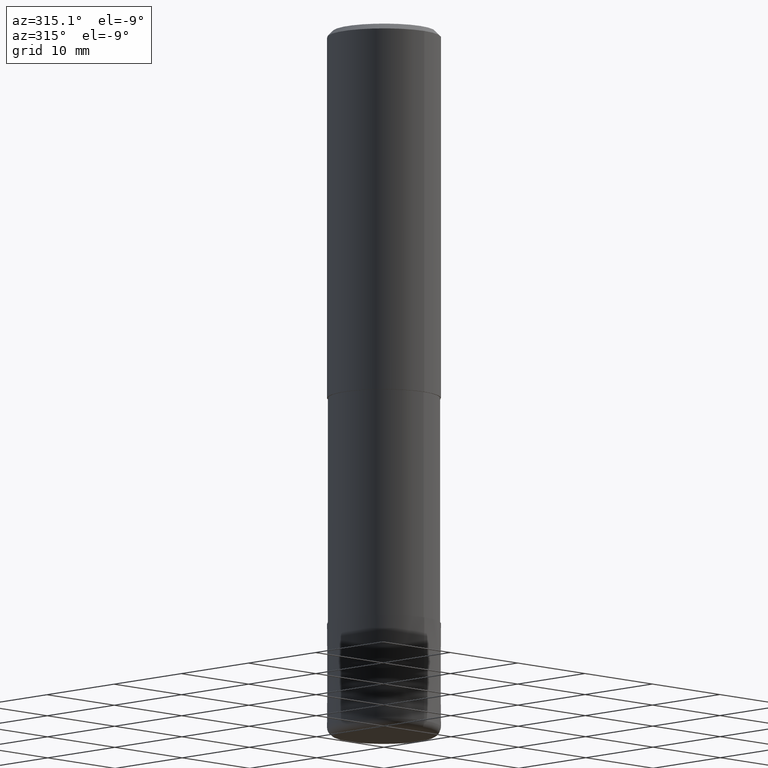
[diagram: clean part render]
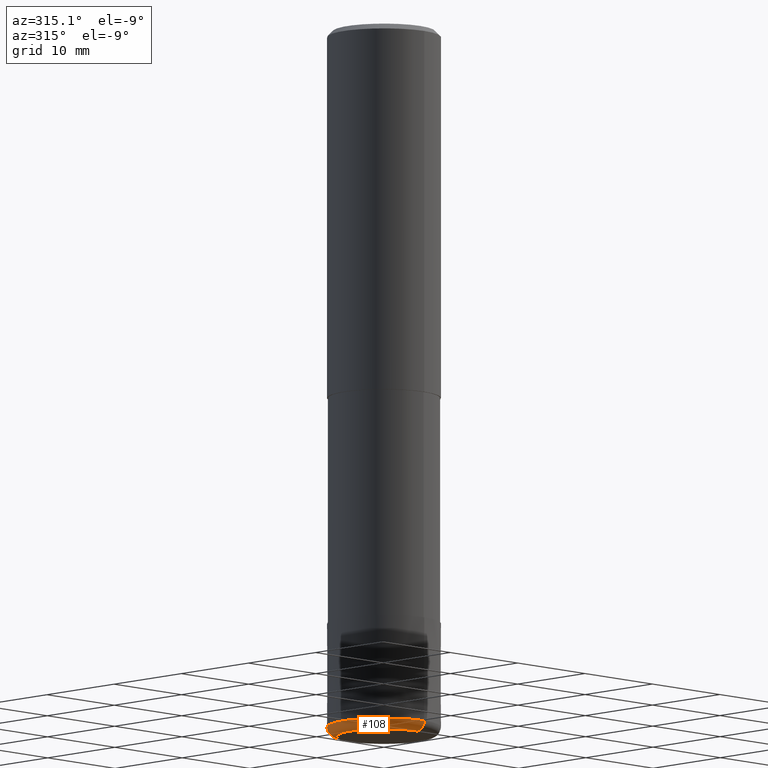
[diagram: same view with one face highlighted and labeled with its STEP entity id]
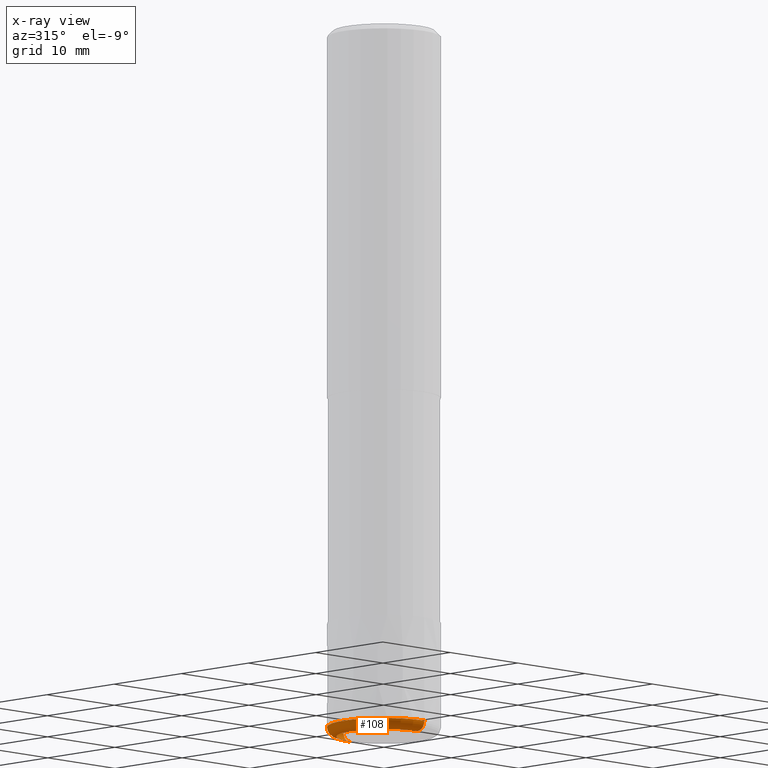
[diagram: x-ray of the same camera — body ghosted, the highlighted face saturated]
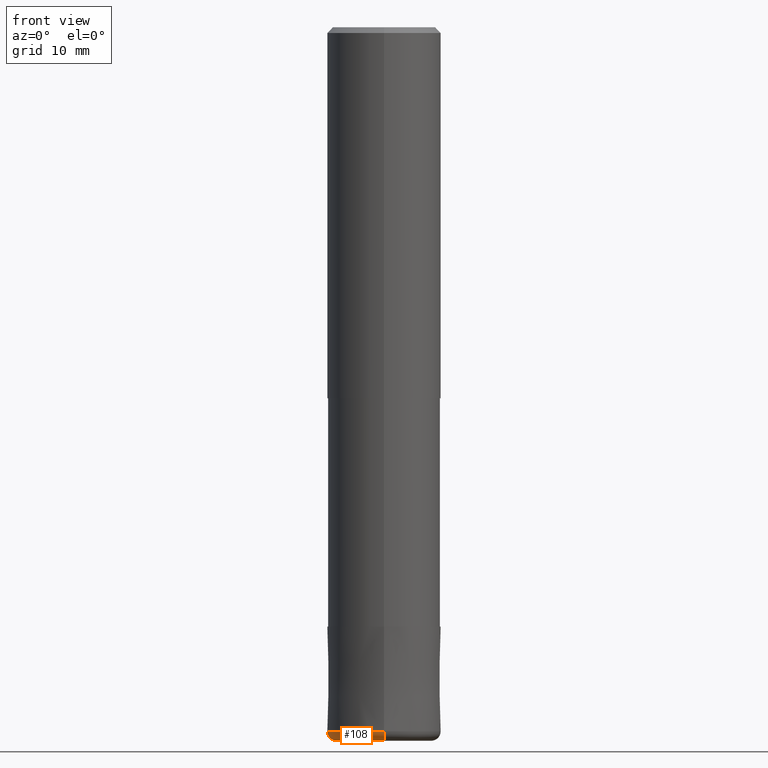
[diagram: same view with one face highlighted and labeled with its STEP entity id]
A machine part, auxiliary view. The second image highlights one B-rep face of the part: STEP entity #108.
The next image is the same camera in x-ray: the body ghosted, the highlighted face saturated — about 0% of this face is hidden behind the body in this view.
A second angle (front view) of the same face is appended — the face is thin or edge-on in the first view.
In plain terms, the highlighted toroidal blend (fillet) surface has major radius 5 mm and minor (blend) radius 1 mm.
Its self-contained STEP definition (entity closure, byte-faithful):
#108=ADVANCED_FACE('',(#247),#248,.T.);
#110=VERTEX_POINT('',#250);
#114=VERTEX_POINT('',#254);
#128=EDGE_CURVE('',#182,#110,#270,.T.);
#148=EDGE_CURVE('',#114,#192,#296,.T.);
#182=VERTEX_POINT('',#334);
#188=EDGE_CURVE('',#110,#114,#341,.T.);
#192=VERTEX_POINT('',#345);
#196=EDGE_CURVE('',#182,#192,#349,.T.);
#247=FACE_OUTER_BOUND('',#397,.T.);
#248=TOROIDAL_SURFACE('',#398,5.0,1.0);
#250=CARTESIAN_POINT('',(6.12303176911189E-016,-5.0,-75.0));
#254=CARTESIAN_POINT('',(0.0,5.0,-75.0));
#270=CIRCLE('',#423,1.0);
#296=CIRCLE('',#453,1.0);
#334=CARTESIAN_POINT('',(7.34763812293426E-016,-6.0,-74.0));
#341=CIRCLE('',#507,5.0);
#345=CARTESIAN_POINT('',(0.0,6.0,-74.0));
#349=CIRCLE('',#519,6.0);
#397=EDGE_LOOP('',(#563,#564,#565,#566));
#398=AXIS2_PLACEMENT_3D('',#567,#568,#569);
#423=AXIS2_PLACEMENT_3D('',#591,#592,#593);
#453=AXIS2_PLACEMENT_3D('',#641,#642,#643);
#507=AXIS2_PLACEMENT_3D('',#695,#696,#697);
#519=AXIS2_PLACEMENT_3D('',#702,#703,#704);
#563=ORIENTED_EDGE('',*,*,#128,.F.);
#564=ORIENTED_EDGE('',*,*,#196,.T.);
#565=ORIENTED_EDGE('',*,*,#148,.F.);
#566=ORIENTED_EDGE('',*,*,#188,.F.);
#567=CARTESIAN_POINT('',(0.0,0.0,-74.0));
#568=DIRECTION('',(0.0,0.0,-1.0));
#569=DIRECTION('',(0.0,-1.0,0.0));
#591=CARTESIAN_POINT('',(6.12303176911188E-016,-5.0,-74.0));
#592=DIRECTION('',(1.0,1.22460635382238E-016,0.0));
#593=DIRECTION('',(1.22460635382238E-016,-1.0,-0.0));
#641=CARTESIAN_POINT('',(-6.12303176911188E-016,5.0,-74.0));
#642=DIRECTION('',(1.0,1.22460635382238E-016,0.0));
#643=DIRECTION('',(-1.22460635382238E-016,1.0,0.0));
#695=CARTESIAN_POINT('',(0.0,0.0,-75.0));
#696=DIRECTION('',(0.0,0.0,-1.0));
#697=DIRECTION('',(0.0,1.0,0.0));
#702=CARTESIAN_POINT('',(0.0,0.0,-74.0));
#703=DIRECTION('',(0.0,0.0,-1.0));
#704=DIRECTION('',(0.0,1.0,0.0));